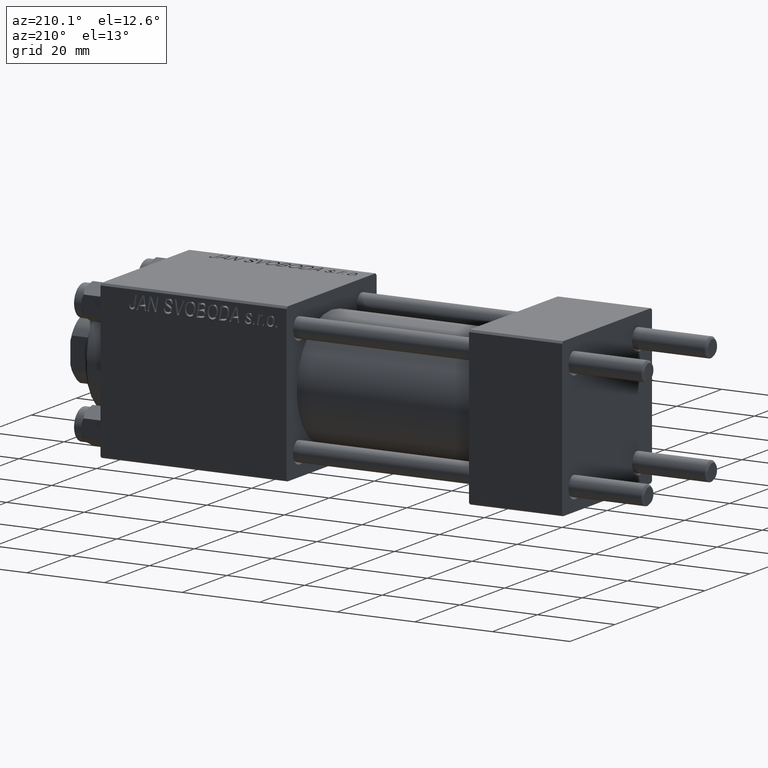
[diagram: clean part render]
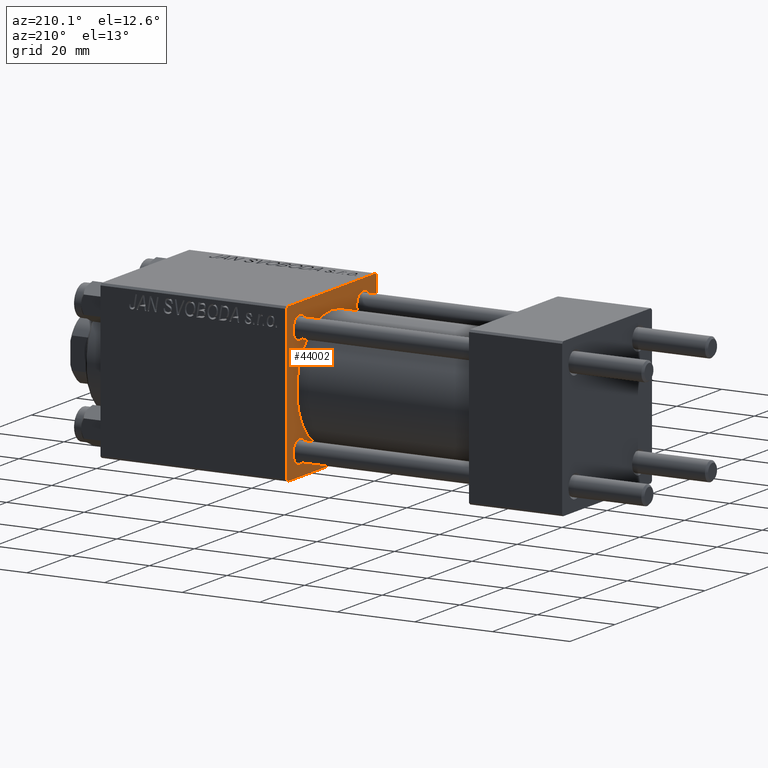
[diagram: same view with one face highlighted and labeled with its STEP entity id]
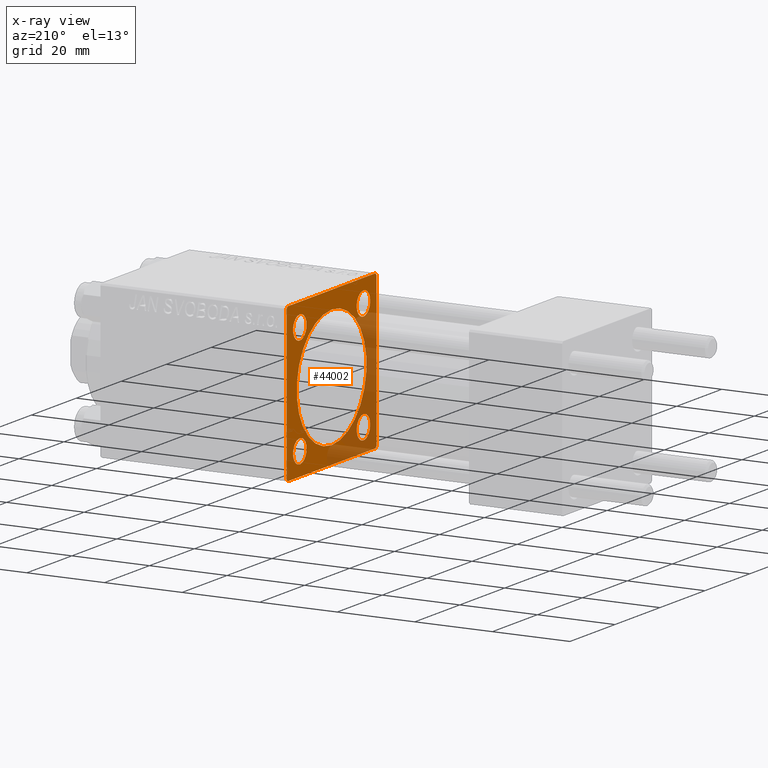
[diagram: x-ray of the same camera — body ghosted, the highlighted face saturated]
A machine part, auxiliary view. The second image highlights one B-rep face of the part: STEP entity #44002.
The next image is the same camera in x-ray: the body ghosted, the highlighted face saturated — about 35% of this face is hidden behind the body in this view.
In plain terms, the highlighted planar face has unit normal (-1, 0, 0).
Its self-contained STEP definition (entity closure, byte-faithful):
#86 = CARTESIAN_POINT ( 'NONE',  ( 71.00000000000001421, -20.00000000000000355, 19.50000000000002487 ) ) ;
#931 = EDGE_CURVE ( 'NONE', #1734, #49024, #36355, .T. ) ;
#1089 = CARTESIAN_POINT ( 'NONE',  ( 71.00000000000001421, -14.15000000000000036, -14.15000000000000036 ) ) ;
#1114 = CIRCLE ( 'NONE', #5153, 2.999999999999976463 ) ;
#1371 = CARTESIAN_POINT ( 'NONE',  ( 71.00000000000001421, 19.99999999999999645, -19.50000000000000000 ) ) ;
#1734 = VERTEX_POINT ( 'NONE', #34163 ) ;
#1840 = EDGE_CURVE ( 'NONE', #13949, #36031, #9062, .T. ) ;
#1912 = FACE_BOUND ( 'NONE', #29219, .T. ) ;
#2406 = DIRECTION ( 'NONE',  ( -1.000000000000000000, 0.000000000000000000, -0.000000000000000000 ) ) ;
#2979 = DIRECTION ( 'NONE',  ( 0.000000000000000000, -1.000000000000000000, 0.000000000000000000 ) ) ;
#3311 = CIRCLE ( 'NONE', #9715, 2.999999999999976463 ) ;
#3886 = EDGE_CURVE ( 'NONE', #49579, #13689, #33852, .T. ) ;
#4040 = ORIENTED_EDGE ( 'NONE', *, *, #931, .T. ) ;
#4050 = CIRCLE ( 'NONE', #44186, 3.000000000000000888 ) ;
#4571 = CARTESIAN_POINT ( 'NONE',  ( 71.00000000000001421, -19.50000000000002487, -20.00000000000000000 ) ) ;
#4781 = ORIENTED_EDGE ( 'NONE', *, *, #49544, .T. ) ;
#5153 = AXIS2_PLACEMENT_3D ( 'NONE', #37739, #33455, #14851 ) ;
#5693 = CARTESIAN_POINT ( 'NONE',  ( 71.00000000000001421, 0.000000000000000000, 0.000000000000000000 ) ) ;
#5894 = CARTESIAN_POINT ( 'NONE',  ( 71.00000000000001421, 1.898202538678397557E-15, -15.50000000000000000 ) ) ;
#5976 = DIRECTION ( 'NONE',  ( 0.000000000000000000, 0.000000000000000000, -1.000000000000000000 ) ) ;
#6165 = VECTOR ( 'NONE', #18457, 1000.000000000000114 ) ;
#6167 = ORIENTED_EDGE ( 'NONE', *, *, #40820, .T. ) ;
#6456 = DIRECTION ( 'NONE',  ( 0.000000000000000000, -0.7071067811865376918, 0.7071067811865574537 ) ) ;
#6672 = AXIS2_PLACEMENT_3D ( 'NONE', #19324, #36071, #38921 ) ;
#7175 = DIRECTION ( 'NONE',  ( 1.000000000000000000, 0.000000000000000000, 0.000000000000000000 ) ) ;
#8005 = CARTESIAN_POINT ( 'NONE',  ( 71.00000000000001421, 14.15000000000000036, 11.14999999999999858 ) ) ;
#8135 = ORIENTED_EDGE ( 'NONE', *, *, #26368, .T. ) ;
#8186 = DIRECTION ( 'NONE',  ( 0.000000000000000000, 0.000000000000000000, -1.000000000000000000 ) ) ;
#8688 = CIRCLE ( 'NONE', #36812, 15.50000000000000000 ) ;
#9062 = CIRCLE ( 'NONE', #6672, 2.999999999999976463 ) ;
#9242 = VECTOR ( 'NONE', #2979, 1000.000000000000000 ) ;
#9269 = VECTOR ( 'NONE', #6456, 999.9999999999998863 ) ;
#9340 = ORIENTED_EDGE ( 'NONE', *, *, #19103, .T. ) ;
#9402 = VERTEX_POINT ( 'NONE', #28350 ) ;
#9715 = AXIS2_PLACEMENT_3D ( 'NONE', #15708, #19497, #49425 ) ;
#10290 = CARTESIAN_POINT ( 'NONE',  ( 71.00000000000001421, 14.15000000000000036, -17.14999999999997726 ) ) ;
#10468 = CARTESIAN_POINT ( 'NONE',  ( 71.00000000000001421, 14.15000000000000036, 14.15000000000000036 ) ) ;
#10626 = CARTESIAN_POINT ( 'NONE',  ( 71.00000000000001421, 19.99999999999999645, 19.49999999999998579 ) ) ;
#10677 = DIRECTION ( 'NONE',  ( 0.000000000000000000, 0.000000000000000000, 1.000000000000000000 ) ) ;
#10938 = CARTESIAN_POINT ( 'NONE',  ( 71.00000000000001421, 0.000000000000000000, 0.000000000000000000 ) ) ;
#11102 = ORIENTED_EDGE ( 'NONE', *, *, #44658, .T. ) ;
#11479 = AXIS2_PLACEMENT_3D ( 'NONE', #1089, #12417, #31300 ) ;
#11599 = EDGE_LOOP ( 'NONE', ( #40093, #22464, #41443, #17739, #18211, #24740, #4781, #33701 ) ) ;
#11720 = CARTESIAN_POINT ( 'NONE',  ( 71.00000000000001421, 19.99999999999999645, 20.00000000000000000 ) ) ;
#11778 = EDGE_CURVE ( 'NONE', #19481, #18072, #22107, .T. ) ;
#12210 = LINE ( 'NONE', #11720, #32623 ) ;
#12417 = DIRECTION ( 'NONE',  ( 1.000000000000000000, 0.000000000000000000, 0.000000000000000000 ) ) ;
#12964 = VECTOR ( 'NONE', #14031, 1000.000000000000000 ) ;
#13365 = AXIS2_PLACEMENT_3D ( 'NONE', #44687, #39928, #5976 ) ;
#13665 = CARTESIAN_POINT ( 'NONE',  ( 71.00000000000001421, -19.74999999999973710, 19.75000000000028422 ) ) ;
#13689 = VERTEX_POINT ( 'NONE', #10626 ) ;
#13949 = VERTEX_POINT ( 'NONE', #39267 ) ;
#14031 = DIRECTION ( 'NONE',  ( 0.000000000000000000, -1.000000000000000000, -8.673617379884035472E-17 ) ) ;
#14420 = EDGE_CURVE ( 'NONE', #23409, #27376, #25742, .T. ) ;
#14851 = DIRECTION ( 'NONE',  ( 0.000000000000000000, 0.000000000000000000, 1.000000000000000000 ) ) ;
#14981 = ORIENTED_EDGE ( 'NONE', *, *, #29372, .T. ) ;
#15708 = CARTESIAN_POINT ( 'NONE',  ( 71.00000000000001421, 14.15000000000000036, -14.15000000000000036 ) ) ;
#15753 = VERTEX_POINT ( 'NONE', #5894 ) ;
#15927 = ORIENTED_EDGE ( 'NONE', *, *, #1840, .T. ) ;
#15991 = CARTESIAN_POINT ( 'NONE',  ( 71.00000000000001421, -14.15000000000000036, 14.15000000000000036 ) ) ;
#16434 = VERTEX_POINT ( 'NONE', #8005 ) ;
#17739 = ORIENTED_EDGE ( 'NONE', *, *, #14420, .T. ) ;
#18072 = VERTEX_POINT ( 'NONE', #4571 ) ;
#18211 = ORIENTED_EDGE ( 'NONE', *, *, #34509, .F. ) ;
#18457 = DIRECTION ( 'NONE',  ( -0.000000000000000000, 0.7071067811865573427, 0.7071067811865376918 ) ) ;
#18461 = CARTESIAN_POINT ( 'NONE',  ( 71.00000000000001421, -20.00000000000000355, 19.99999999999999645 ) ) ;
#18812 = EDGE_CURVE ( 'NONE', #23409, #40434, #41825, .T. ) ;
#19103 = EDGE_CURVE ( 'NONE', #30436, #15753, #35041, .T. ) ;
#19324 = CARTESIAN_POINT ( 'NONE',  ( 71.00000000000001421, 14.15000000000000036, -14.15000000000000036 ) ) ;
#19481 = VERTEX_POINT ( 'NONE', #33061 ) ;
#19497 = DIRECTION ( 'NONE',  ( 1.000000000000000000, 0.000000000000000000, 0.000000000000000000 ) ) ;
#20324 = EDGE_CURVE ( 'NONE', #33288, #9402, #45546, .T. ) ;
#20935 = VECTOR ( 'NONE', #37031, 1000.000000000000114 ) ;
#21715 = LINE ( 'NONE', #48839, #20935 ) ;
#21791 = FACE_OUTER_BOUND ( 'NONE', #11599, .T. ) ;
#22107 = LINE ( 'NONE', #37435, #9242 ) ;
#22464 = ORIENTED_EDGE ( 'NONE', *, *, #43261, .T. ) ;
#22526 = DIRECTION ( 'NONE',  ( 0.000000000000000000, 0.000000000000000000, -1.000000000000000000 ) ) ;
#23409 = VERTEX_POINT ( 'NONE', #86 ) ;
#23549 = EDGE_CURVE ( 'NONE', #15753, #30436, #8688, .T. ) ;
#24740 = ORIENTED_EDGE ( 'NONE', *, *, #3886, .T. ) ;
#24766 = CARTESIAN_POINT ( 'NONE',  ( 71.00000000000001421, -20.00000000000000000, -19.50000000000001066 ) ) ;
#24820 = FACE_BOUND ( 'NONE', #39704, .T. ) ;
#25429 = CARTESIAN_POINT ( 'NONE',  ( 71.00000000000001421, -14.15000000000000036, -11.15000000000002522 ) ) ;
#25717 = ORIENTED_EDGE ( 'NONE', *, *, #20324, .T. ) ;
#25742 = LINE ( 'NONE', #13665, #6165 ) ;
#26368 = EDGE_CURVE ( 'NONE', #16434, #28446, #4050, .T. ) ;
#27376 = VERTEX_POINT ( 'NONE', #40361 ) ;
#27508 = VERTEX_POINT ( 'NONE', #1371 ) ;
#27823 = EDGE_CURVE ( 'NONE', #27508, #19481, #21715, .T. ) ;
#28329 = CARTESIAN_POINT ( 'NONE',  ( 71.00000000000001421, 14.15000000000000036, 17.15000000000000568 ) ) ;
#28350 = CARTESIAN_POINT ( 'NONE',  ( 71.00000000000001421, -14.15000000000000036, 11.14999999999999858 ) ) ;
#28446 = VERTEX_POINT ( 'NONE', #28329 ) ;
#28528 = ORIENTED_EDGE ( 'NONE', *, *, #47678, .T. ) ;
#29219 = EDGE_LOOP ( 'NONE', ( #25717, #28528 ) ) ;
#29372 = EDGE_CURVE ( 'NONE', #36031, #13949, #3311, .T. ) ;
#29474 = AXIS2_PLACEMENT_3D ( 'NONE', #15991, #46167, #46420 ) ;
#30108 = DIRECTION ( 'NONE',  ( 0.000000000000000000, 0.7071067811865574537, -0.7071067811865376918 ) ) ;
#30249 = AXIS2_PLACEMENT_3D ( 'NONE', #36932, #32677, #48230 ) ;
#30436 = VERTEX_POINT ( 'NONE', #42127 ) ;
#31111 = AXIS2_PLACEMENT_3D ( 'NONE', #37338, #48893, #10677 ) ;
#31300 = DIRECTION ( 'NONE',  ( 0.000000000000000000, 0.000000000000000000, 1.000000000000000000 ) ) ;
#32389 = EDGE_LOOP ( 'NONE', ( #11102, #8135 ) ) ;
#32623 = VECTOR ( 'NONE', #8186, 1000.000000000000000 ) ;
#32677 = DIRECTION ( 'NONE',  ( 1.000000000000000000, 0.000000000000000000, 0.000000000000000000 ) ) ;
#33061 = CARTESIAN_POINT ( 'NONE',  ( 71.00000000000001421, 19.49999999999999645, -20.00000000000000000 ) ) ;
#33143 = LINE ( 'NONE', #48462, #12964 ) ;
#33288 = VERTEX_POINT ( 'NONE', #40295 ) ;
#33455 = DIRECTION ( 'NONE',  ( 1.000000000000000000, 0.000000000000000000, 0.000000000000000000 ) ) ;
#33701 = ORIENTED_EDGE ( 'NONE', *, *, #27823, .T. ) ;
#33852 = LINE ( 'NONE', #49181, #45973 ) ;
#34163 = CARTESIAN_POINT ( 'NONE',  ( 71.00000000000001421, -14.15000000000000036, -17.14999999999997726 ) ) ;
#34178 = EDGE_LOOP ( 'NONE', ( #15927, #14981 ) ) ;
#34509 = EDGE_CURVE ( 'NONE', #49579, #27376, #33143, .T. ) ;
#35041 = CIRCLE ( 'NONE', #13365, 15.50000000000000000 ) ;
#35800 = CIRCLE ( 'NONE', #30249, 3.000000000000000888 ) ;
#36031 = VERTEX_POINT ( 'NONE', #10290 ) ;
#36071 = DIRECTION ( 'NONE',  ( 1.000000000000000000, 0.000000000000000000, 0.000000000000000000 ) ) ;
#36117 = DIRECTION ( 'NONE',  ( -0.000000000000000000, 0.000000000000000000, 1.000000000000000000 ) ) ;
#36355 = CIRCLE ( 'NONE', #11479, 2.999999999999976463 ) ;
#36453 = ORIENTED_EDGE ( 'NONE', *, *, #23549, .T. ) ;
#36619 = FACE_BOUND ( 'NONE', #34178, .T. ) ;
#36812 = AXIS2_PLACEMENT_3D ( 'NONE', #10938, #7175, #22526 ) ;
#36932 = CARTESIAN_POINT ( 'NONE',  ( 71.00000000000001421, 14.15000000000000036, 14.15000000000000036 ) ) ;
#37031 = DIRECTION ( 'NONE',  ( -0.000000000000000000, -0.7071067811865474617, -0.7071067811865474617 ) ) ;
#37130 = DIRECTION ( 'NONE',  ( 1.000000000000000000, 0.000000000000000000, 0.000000000000000000 ) ) ;
#37338 = CARTESIAN_POINT ( 'NONE',  ( 71.00000000000001421, -14.15000000000000036, 14.15000000000000036 ) ) ;
#37435 = CARTESIAN_POINT ( 'NONE',  ( 71.00000000000001421, 19.99999999999999645, -20.00000000000000000 ) ) ;
#37739 = CARTESIAN_POINT ( 'NONE',  ( 71.00000000000001421, -14.15000000000000036, -14.15000000000000036 ) ) ;
#38633 = CARTESIAN_POINT ( 'NONE',  ( 71.00000000000001421, 19.49999999999996803, 20.00000000000000000 ) ) ;
#38921 = DIRECTION ( 'NONE',  ( 0.000000000000000000, 0.000000000000000000, 1.000000000000000000 ) ) ;
#39267 = CARTESIAN_POINT ( 'NONE',  ( 71.00000000000001421, 14.15000000000000036, -11.15000000000002522 ) ) ;
#39704 = EDGE_LOOP ( 'NONE', ( #6167, #4040 ) ) ;
#39803 = AXIS2_PLACEMENT_3D ( 'NONE', #5693, #2406, #36117 ) ;
#39928 = DIRECTION ( 'NONE',  ( 1.000000000000000000, 0.000000000000000000, 0.000000000000000000 ) ) ;
#40093 = ORIENTED_EDGE ( 'NONE', *, *, #11778, .T. ) ;
#40148 = FACE_BOUND ( 'NONE', #43824, .T. ) ;
#40295 = CARTESIAN_POINT ( 'NONE',  ( 71.00000000000001421, -14.15000000000000036, 17.15000000000000568 ) ) ;
#40361 = CARTESIAN_POINT ( 'NONE',  ( 71.00000000000001421, -19.50000000000001776, 19.99999999999999645 ) ) ;
#40434 = VERTEX_POINT ( 'NONE', #24766 ) ;
#40644 = FACE_BOUND ( 'NONE', #32389, .T. ) ;
#40820 = EDGE_CURVE ( 'NONE', #49024, #1734, #1114, .T. ) ;
#41158 = CARTESIAN_POINT ( 'NONE',  ( 71.00000000000001421, -19.75000000000028066, -19.74999999999973355 ) ) ;
#41443 = ORIENTED_EDGE ( 'NONE', *, *, #18812, .F. ) ;
#41825 = LINE ( 'NONE', #18461, #48695 ) ;
#42127 = CARTESIAN_POINT ( 'NONE',  ( 71.00000000000001421, 0.000000000000000000, 15.50000000000000000 ) ) ;
#43261 = EDGE_CURVE ( 'NONE', #18072, #40434, #44678, .T. ) ;
#43824 = EDGE_LOOP ( 'NONE', ( #9340, #36453 ) ) ;
#44002 = ADVANCED_FACE ( 'NONE', ( #1912, #40644, #36619, #24820, #40148, #21791 ), #47928, .T. ) ;
#44186 = AXIS2_PLACEMENT_3D ( 'NONE', #10468, #37130, #45672 ) ;
#44658 = EDGE_CURVE ( 'NONE', #28446, #16434, #35800, .T. ) ;
#44678 = LINE ( 'NONE', #41158, #9269 ) ;
#44687 = CARTESIAN_POINT ( 'NONE',  ( 71.00000000000001421, 0.000000000000000000, 0.000000000000000000 ) ) ;
#45084 = DIRECTION ( 'NONE',  ( 0.000000000000000000, 8.673617379884036705E-17, -1.000000000000000000 ) ) ;
#45546 = CIRCLE ( 'NONE', #31111, 3.000000000000004441 ) ;
#45672 = DIRECTION ( 'NONE',  ( 0.000000000000000000, 0.000000000000000000, 1.000000000000000000 ) ) ;
#45973 = VECTOR ( 'NONE', #30108, 999.9999999999998863 ) ;
#46167 = DIRECTION ( 'NONE',  ( 1.000000000000000000, 0.000000000000000000, 0.000000000000000000 ) ) ;
#46317 = CIRCLE ( 'NONE', #29474, 3.000000000000004441 ) ;
#46420 = DIRECTION ( 'NONE',  ( 0.000000000000000000, 0.000000000000000000, 1.000000000000000000 ) ) ;
#47678 = EDGE_CURVE ( 'NONE', #9402, #33288, #46317, .T. ) ;
#47928 = PLANE ( 'NONE',  #39803 ) ;
#48230 = DIRECTION ( 'NONE',  ( 0.000000000000000000, 0.000000000000000000, 1.000000000000000000 ) ) ;
#48462 = CARTESIAN_POINT ( 'NONE',  ( 71.00000000000001421, 19.99999999999999645, 20.00000000000000000 ) ) ;
#48695 = VECTOR ( 'NONE', #45084, 1000.000000000000000 ) ;
#48839 = CARTESIAN_POINT ( 'NONE',  ( 71.00000000000001421, 19.74999999999999645, -19.74999999999999645 ) ) ;
#48893 = DIRECTION ( 'NONE',  ( 1.000000000000000000, 0.000000000000000000, 0.000000000000000000 ) ) ;
#49024 = VERTEX_POINT ( 'NONE', #25429 ) ;
#49181 = CARTESIAN_POINT ( 'NONE',  ( 71.00000000000001421, 19.74999999999971578, 19.75000000000026290 ) ) ;
#49425 = DIRECTION ( 'NONE',  ( 0.000000000000000000, 0.000000000000000000, 1.000000000000000000 ) ) ;
#49544 = EDGE_CURVE ( 'NONE', #13689, #27508, #12210, .T. ) ;
#49579 = VERTEX_POINT ( 'NONE', #38633 ) ;